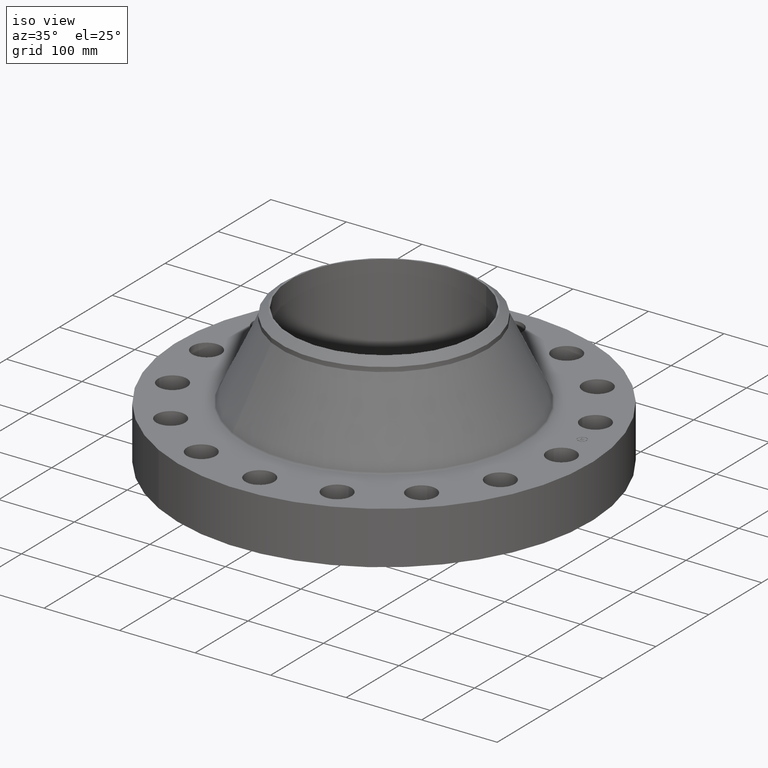
[diagram: clean part render]
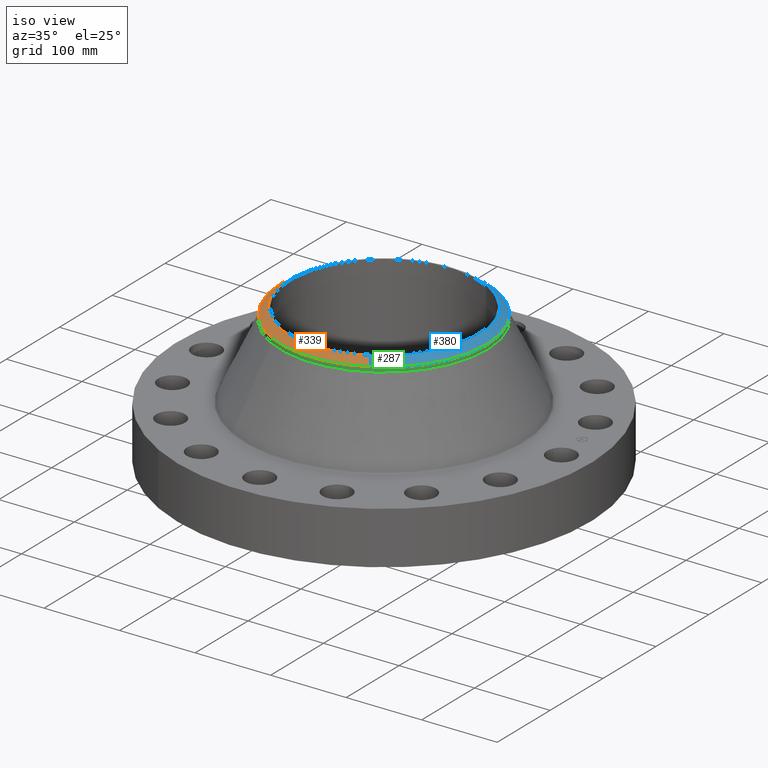
[diagram: same view with three faces highlighted in distinct colors, each labeled with its STEP entity id]
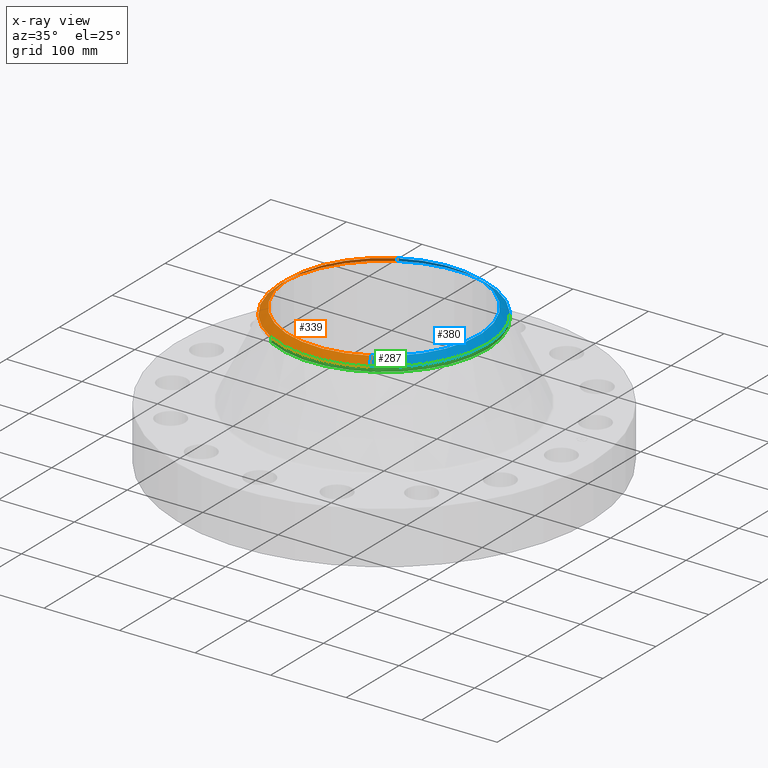
[diagram: x-ray of the same camera — body ghosted, the three highlighted faces saturated]
A machine part, iso view with three faces highlighted in distinct colors.
The next image is the same camera in x-ray (body ghosted, the three faces saturated) — at least one of them is partly hidden behind the body in this view.
Their STEP definitions:

[orange] entity #339 — the highlighted conical surface has half-angle 52.5 deg.
#277=AXIS2_PLACEMENT_3D('Circle Axis2P3D',#275,#276,$) ;
#290=AXIS2_PLACEMENT_3D('Circle Axis2P3D',#288,#289,$) ;
#311=AXIS2_PLACEMENT_3D('Cone Axis2P3D',#308,#309,#310) ;
#322=AXIS2_PLACEMENT_3D('Circle Axis2P3D',#320,#321,$) ;
#258=CARTESIAN_POINT('Vertex',(-2.57691227001,-4.71700627018,6.92675595391)) ;
#272=CARTESIAN_POINT('Vertex',(2.57691227001,-4.71700627018,6.92675595391)) ;
#275=CARTESIAN_POINT('Axis2P3D Location',(0.,0.,6.92675595391)) ;
#288=CARTESIAN_POINT('Axis2P3D Location',(0.,0.,6.92675595391)) ;
#292=CARTESIAN_POINT('Vertex',(-2.57691227001,4.71700627018,6.92675595391)) ;
#308=CARTESIAN_POINT('Axis2P3D Location',(0.,0.,7.25000000003)) ;
#313=CARTESIAN_POINT('Line Origine',(2.47593090656,-4.53216112427,7.08837797697)) ;
#317=CARTESIAN_POINT('Vertex',(2.37494954311,-4.34731597836,7.25000000003)) ;
#320=CARTESIAN_POINT('Axis2P3D Location',(0.,0.,7.25000000003)) ;
#324=CARTESIAN_POINT('Vertex',(-2.37494954311,4.34731597836,7.25000000003)) ;
#327=CARTESIAN_POINT('Line Origine',(-2.47593090656,4.53216112427,7.08837797697)) ;
#276=DIRECTION('Axis2P3D Direction',(0.,0.,-0.0393700787402)) ;
#289=DIRECTION('Axis2P3D Direction',(0.,0.,-0.0393700787402)) ;
#309=DIRECTION('Axis2P3D Direction',(-0.,-0.,-0.0393700787402)) ;
#310=DIRECTION('Axis2P3D XDirection',(-0.0188750212049,0.0345504945626,0.)) ;
#314=DIRECTION('Vector Direction',(0.014974561121,-0.02741075027,-0.023966985394)) ;
#321=DIRECTION('Axis2P3D Direction',(0.,0.,-0.0393700787402)) ;
#328=DIRECTION('Vector Direction',(-0.014974561121,0.02741075027,-0.023966985394)) ;
#315=VECTOR('Line Direction',#314,0.0393700787402) ;
#329=VECTOR('Line Direction',#328,0.0393700787402) ;
#333=ORIENTED_EDGE('',*,*,#319,.F.) ;
#334=ORIENTED_EDGE('',*,*,#326,.F.) ;
#335=ORIENTED_EDGE('',*,*,#331,.T.) ;
#336=ORIENTED_EDGE('',*,*,#294,.T.) ;
#337=ORIENTED_EDGE('',*,*,#279,.F.) ;
#339=ADVANCED_FACE('PartBody',(#338),#312,.T.) ;
#278=CIRCLE('generated circle',#277,5.37500000002) ;
#291=CIRCLE('generated circle',#290,5.37500000002) ;
#323=CIRCLE('generated circle',#322,4.9537401575) ;
#312=CONICAL_SURFACE('Cone',#311,4.9537401575,0.916297857297) ;
#279=EDGE_CURVE('',#273,#259,#278,.T.) ;
#294=EDGE_CURVE('',#293,#259,#291,.F.) ;
#319=EDGE_CURVE('',#318,#273,#316,.T.) ;
#326=EDGE_CURVE('',#325,#318,#323,.F.) ;
#331=EDGE_CURVE('',#325,#293,#330,.T.) ;
#332=EDGE_LOOP('',(#333,#334,#335,#336,#337)) ;
#338=FACE_OUTER_BOUND('',#332,.T.) ;
#316=LINE('Line',#313,#315) ;
#330=LINE('Line',#327,#329) ;
#259=VERTEX_POINT('',#258) ;
#273=VERTEX_POINT('',#272) ;
#293=VERTEX_POINT('',#292) ;
#318=VERTEX_POINT('',#317) ;
#325=VERTEX_POINT('',#324) ;

[blue] entity #380 — the highlighted conical surface has half-angle 52.5 deg.
#270=AXIS2_PLACEMENT_3D('Circle Axis2P3D',#268,#269,$) ;
#297=AXIS2_PLACEMENT_3D('Circle Axis2P3D',#295,#296,$) ;
#311=AXIS2_PLACEMENT_3D('Cone Axis2P3D',#308,#309,#310) ;
#347=AXIS2_PLACEMENT_3D('Circle Axis2P3D',#345,#346,$) ;
#265=CARTESIAN_POINT('Vertex',(2.57691227001,4.71700627018,6.92675595391)) ;
#268=CARTESIAN_POINT('Axis2P3D Location',(0.,0.,6.92675595391)) ;
#272=CARTESIAN_POINT('Vertex',(2.57691227001,-4.71700627018,6.92675595391)) ;
#292=CARTESIAN_POINT('Vertex',(-2.57691227001,4.71700627018,6.92675595391)) ;
#295=CARTESIAN_POINT('Axis2P3D Location',(0.,0.,6.92675595391)) ;
#308=CARTESIAN_POINT('Axis2P3D Location',(0.,0.,7.25000000003)) ;
#313=CARTESIAN_POINT('Line Origine',(2.47593090656,-4.53216112427,7.08837797697)) ;
#317=CARTESIAN_POINT('Vertex',(2.37494954311,-4.34731597836,7.25000000003)) ;
#324=CARTESIAN_POINT('Vertex',(-2.37494954311,4.34731597836,7.25000000003)) ;
#327=CARTESIAN_POINT('Line Origine',(-2.47593090656,4.53216112427,7.08837797697)) ;
#345=CARTESIAN_POINT('Axis2P3D Location',(0.,0.,7.25000000003)) ;
#269=DIRECTION('Axis2P3D Direction',(0.,0.,-0.0393700787402)) ;
#296=DIRECTION('Axis2P3D Direction',(0.,0.,-0.0393700787402)) ;
#309=DIRECTION('Axis2P3D Direction',(-0.,-0.,-0.0393700787402)) ;
#310=DIRECTION('Axis2P3D XDirection',(-0.0188750212049,0.0345504945626,0.)) ;
#314=DIRECTION('Vector Direction',(0.014974561121,-0.02741075027,-0.023966985394)) ;
#328=DIRECTION('Vector Direction',(-0.014974561121,0.02741075027,-0.023966985394)) ;
#346=DIRECTION('Axis2P3D Direction',(0.,0.,-0.0393700787402)) ;
#315=VECTOR('Line Direction',#314,0.0393700787402) ;
#329=VECTOR('Line Direction',#328,0.0393700787402) ;
#374=ORIENTED_EDGE('',*,*,#331,.F.) ;
#375=ORIENTED_EDGE('',*,*,#349,.F.) ;
#376=ORIENTED_EDGE('',*,*,#319,.T.) ;
#377=ORIENTED_EDGE('',*,*,#274,.T.) ;
#378=ORIENTED_EDGE('',*,*,#299,.F.) ;
#380=ADVANCED_FACE('PartBody',(#379),#312,.T.) ;
#271=CIRCLE('generated circle',#270,5.37500000002) ;
#298=CIRCLE('generated circle',#297,5.37500000002) ;
#348=CIRCLE('generated circle',#347,4.9537401575) ;
#312=CONICAL_SURFACE('Cone',#311,4.9537401575,0.916297857297) ;
#274=EDGE_CURVE('',#273,#266,#271,.F.) ;
#299=EDGE_CURVE('',#293,#266,#298,.T.) ;
#319=EDGE_CURVE('',#318,#273,#316,.T.) ;
#331=EDGE_CURVE('',#325,#293,#330,.T.) ;
#349=EDGE_CURVE('',#318,#325,#348,.F.) ;
#373=EDGE_LOOP('',(#374,#375,#376,#377,#378)) ;
#379=FACE_OUTER_BOUND('',#373,.T.) ;
#316=LINE('Line',#313,#315) ;
#330=LINE('Line',#327,#329) ;
#266=VERTEX_POINT('',#265) ;
#273=VERTEX_POINT('',#272) ;
#293=VERTEX_POINT('',#292) ;
#318=VERTEX_POINT('',#317) ;
#325=VERTEX_POINT('',#324) ;

[green] entity #287 — the highlighted cylindrical surface (partial cylindrical patch) has radius 136.525 mm, axis along (0, 0, -1).
#220=AXIS2_PLACEMENT_3D('Circle Axis2P3D',#218,#219,$) ;
#252=AXIS2_PLACEMENT_3D('Cylinder Axis2P3D',#249,#250,#251) ;
#270=AXIS2_PLACEMENT_3D('Circle Axis2P3D',#268,#269,$) ;
#277=AXIS2_PLACEMENT_3D('Circle Axis2P3D',#275,#276,$) ;
#215=CARTESIAN_POINT('Vertex',(2.57691227001,4.71700627018,6.69053548147)) ;
#218=CARTESIAN_POINT('Axis2P3D Location',(0.,0.,6.69053548147)) ;
#222=CARTESIAN_POINT('Vertex',(-2.57691227001,-4.71700627018,6.69053548147)) ;
#249=CARTESIAN_POINT('Axis2P3D Location',(0.,0.,3.62500000001)) ;
#254=CARTESIAN_POINT('Line Origine',(-2.57691227001,-4.71700627018,6.80864571769)) ;
#258=CARTESIAN_POINT('Vertex',(-2.57691227001,-4.71700627018,6.92675595391)) ;
#261=CARTESIAN_POINT('Line Origine',(2.57691227001,4.71700627018,6.80864571769)) ;
#265=CARTESIAN_POINT('Vertex',(2.57691227001,4.71700627018,6.92675595391)) ;
#268=CARTESIAN_POINT('Axis2P3D Location',(0.,0.,6.92675595391)) ;
#272=CARTESIAN_POINT('Vertex',(2.57691227001,-4.71700627018,6.92675595391)) ;
#275=CARTESIAN_POINT('Axis2P3D Location',(0.,0.,6.92675595391)) ;
#219=DIRECTION('Axis2P3D Direction',(0.,0.,-0.0393700787402)) ;
#250=DIRECTION('Axis2P3D Direction',(0.,0.,-0.0393700787402)) ;
#251=DIRECTION('Axis2P3D XDirection',(-0.0188750212049,-0.0345504945626,0.)) ;
#255=DIRECTION('Vector Direction',(0.,0.,-0.0393700787402)) ;
#262=DIRECTION('Vector Direction',(0.,0.,-0.0393700787402)) ;
#269=DIRECTION('Axis2P3D Direction',(0.,0.,-0.0393700787402)) ;
#276=DIRECTION('Axis2P3D Direction',(0.,0.,-0.0393700787402)) ;
#256=VECTOR('Line Direction',#255,0.0393700787402) ;
#263=VECTOR('Line Direction',#262,0.0393700787402) ;
#281=ORIENTED_EDGE('',*,*,#260,.F.) ;
#282=ORIENTED_EDGE('',*,*,#224,.F.) ;
#283=ORIENTED_EDGE('',*,*,#267,.T.) ;
#284=ORIENTED_EDGE('',*,*,#274,.F.) ;
#285=ORIENTED_EDGE('',*,*,#279,.T.) ;
#287=ADVANCED_FACE('PartBody',(#286),#253,.T.) ;
#221=CIRCLE('generated circle',#220,5.37500000002) ;
#271=CIRCLE('generated circle',#270,5.37500000002) ;
#278=CIRCLE('generated circle',#277,5.37500000002) ;
#253=CYLINDRICAL_SURFACE('generated cylinder',#252,5.37500000002) ;
#224=EDGE_CURVE('',#216,#223,#221,.T.) ;
#260=EDGE_CURVE('',#223,#259,#257,.F.) ;
#267=EDGE_CURVE('',#216,#266,#264,.F.) ;
#274=EDGE_CURVE('',#273,#266,#271,.F.) ;
#279=EDGE_CURVE('',#273,#259,#278,.T.) ;
#280=EDGE_LOOP('',(#281,#282,#283,#284,#285)) ;
#286=FACE_OUTER_BOUND('',#280,.T.) ;
#257=LINE('Line',#254,#256) ;
#264=LINE('Line',#261,#263) ;
#216=VERTEX_POINT('',#215) ;
#223=VERTEX_POINT('',#222) ;
#259=VERTEX_POINT('',#258) ;
#266=VERTEX_POINT('',#265) ;
#273=VERTEX_POINT('',#272) ;